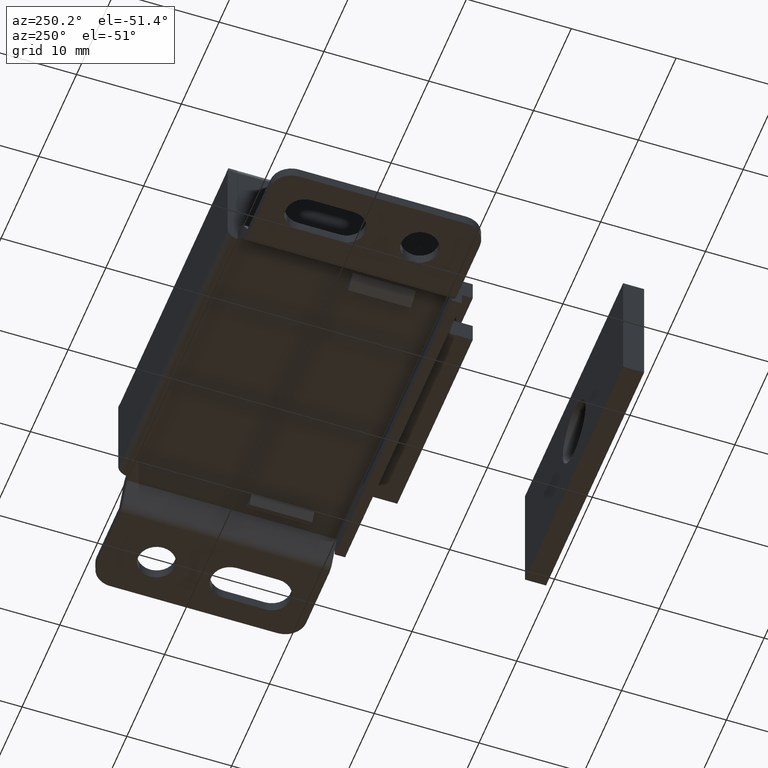
[diagram: clean part render]
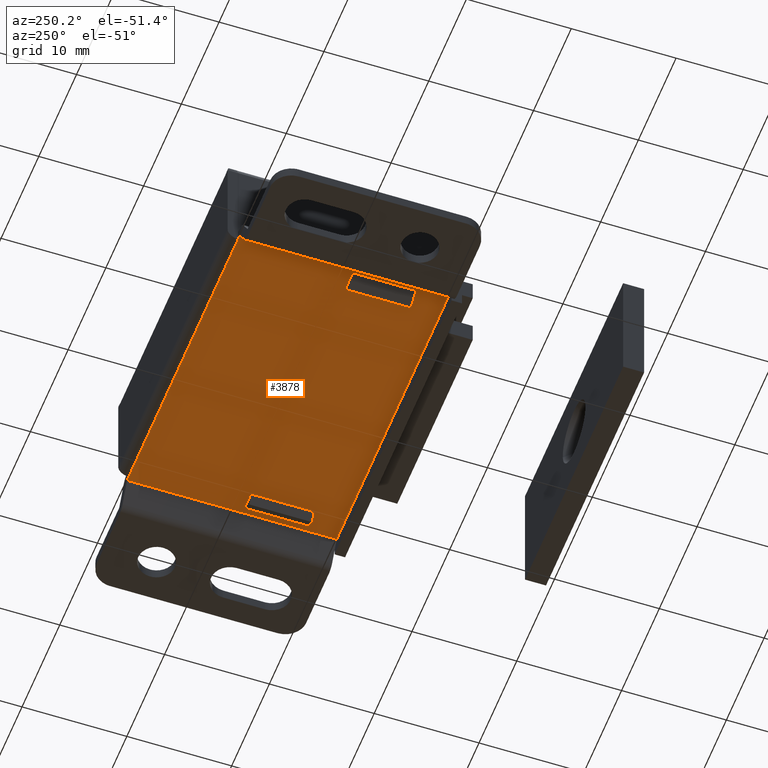
[diagram: same view with one face highlighted and labeled with its STEP entity id]
A machine part, auxiliary view. The second image highlights one B-rep face of the part: STEP entity #3878.
In plain terms, the highlighted face is a freeform B-spline surface patch.
Its self-contained STEP definition (entity closure, byte-faithful):
#2089=CARTESIAN_POINT('',(-14.500000000000000,-1.0,2.499999999999945));
#2090=VERTEX_POINT('',#2089);
#2547=CARTESIAN_POINT('',(14.500000000000000,-1.0,2.499999999999830));
#2548=VERTEX_POINT('',#2547);
#2564=CARTESIAN_POINT('',(-14.500000000000000,-1.0,2.499999999999945));
#2565=CARTESIAN_POINT('',(14.500000000000000,-1.0,2.499999999999830));
#2566=QUASI_UNIFORM_CURVE('',1,(#2564,#2565),.UNSPECIFIED.,.F.,.U.);
#2567=EDGE_CURVE('',#2090,#2548,#2566,.T.);
#3452=CARTESIAN_POINT('',(14.933800895014960,-21.0,2.499999999999945));
#3453=VERTEX_POINT('',#3452);
#3454=CARTESIAN_POINT('',(-14.933819033674780,-21.0,2.499999999999945));
#3455=VERTEX_POINT('',#3454);
#3456=CARTESIAN_POINT('',(14.933800895014960,-21.0,2.499999999999945));
#3457=CARTESIAN_POINT('',(-14.933819033674780,-21.0,2.499999999999945));
#3458=QUASI_UNIFORM_CURVE('',1,(#3456,#3457),.UNSPECIFIED.,.F.,.U.);
#3459=EDGE_CURVE('',#3453,#3455,#3458,.T.);
#3482=CARTESIAN_POINT('',(-12.761084341811539,-17.999995999999999,2.499999999999945));
#3483=VERTEX_POINT('',#3482);
#3484=CARTESIAN_POINT('',(-12.761084341811539,-11.999995999999999,2.499999999999945));
#3485=VERTEX_POINT('',#3484);
#3486=CARTESIAN_POINT('',(-12.761084341811539,-17.999995999999999,2.499999999999945));
#3487=CARTESIAN_POINT('',(-12.761084341811539,-11.999995999999999,2.499999999999945));
#3488=QUASI_UNIFORM_CURVE('',1,(#3486,#3487),.UNSPECIFIED.,.F.,.U.);
#3489=EDGE_CURVE('',#3483,#3485,#3488,.T.);
#3510=CARTESIAN_POINT('',(-14.354530770844359,-11.999995999999999,2.499999999999945));
#3511=VERTEX_POINT('',#3510);
#3512=CARTESIAN_POINT('',(-12.761084341811539,-11.999995999999999,2.499999999999945));
#3513=CARTESIAN_POINT('',(-14.354530770844359,-11.999995999999999,2.499999999999945));
#3514=QUASI_UNIFORM_CURVE('',1,(#3512,#3513),.UNSPECIFIED.,.F.,.U.);
#3515=EDGE_CURVE('',#3485,#3511,#3514,.T.);
#3542=CARTESIAN_POINT('',(-14.354530770844359,-17.999996000000149,2.499999999999945));
#3543=VERTEX_POINT('',#3542);
#3544=CARTESIAN_POINT('',(-12.761084341811539,-17.999995999999999,2.499999999999945));
#3545=CARTESIAN_POINT('',(-14.354530770844359,-17.999996000000149,2.499999999999945));
#3546=QUASI_UNIFORM_CURVE('',1,(#3544,#3545),.UNSPECIFIED.,.F.,.U.);
#3547=EDGE_CURVE('',#3483,#3543,#3546,.T.);
#3581=CARTESIAN_POINT('',(-14.354530770844359,-11.999995999999999,2.499999999999945));
#3582=CARTESIAN_POINT('',(-14.354530770844359,-17.999996000000149,2.499999999999945));
#3583=QUASI_UNIFORM_CURVE('',1,(#3581,#3582),.UNSPECIFIED.,.F.,.U.);
#3584=EDGE_CURVE('',#3511,#3543,#3583,.T.);
#3597=CARTESIAN_POINT('',(12.761084341811539,-11.999995999999999,2.499999999999945));
#3598=VERTEX_POINT('',#3597);
#3599=CARTESIAN_POINT('',(12.761084341811539,-17.999995999999999,2.499999999999945));
#3600=VERTEX_POINT('',#3599);
#3601=CARTESIAN_POINT('',(12.761084341811539,-11.999995999999999,2.499999999999945));
#3602=CARTESIAN_POINT('',(12.761084341811539,-17.999995999999999,2.499999999999945));
#3603=QUASI_UNIFORM_CURVE('',1,(#3601,#3602),.UNSPECIFIED.,.F.,.U.);
#3604=EDGE_CURVE('',#3598,#3600,#3603,.T.);
#3626=CARTESIAN_POINT('',(14.354530770844359,-11.999996000000120,2.499999999999945));
#3627=VERTEX_POINT('',#3626);
#3628=CARTESIAN_POINT('',(12.761084341811539,-11.999995999999999,2.499999999999945));
#3629=CARTESIAN_POINT('',(14.354530770844359,-11.999996000000120,2.499999999999945));
#3630=QUASI_UNIFORM_CURVE('',1,(#3628,#3629),.UNSPECIFIED.,.F.,.U.);
#3631=EDGE_CURVE('',#3598,#3627,#3630,.T.);
#3656=CARTESIAN_POINT('',(14.354530770844359,-17.999995999999999,2.499999999999945));
#3657=VERTEX_POINT('',#3656);
#3658=CARTESIAN_POINT('',(12.761084341811539,-17.999995999999999,2.499999999999945));
#3659=CARTESIAN_POINT('',(14.354530770844359,-17.999995999999999,2.499999999999945));
#3660=QUASI_UNIFORM_CURVE('',1,(#3658,#3659),.UNSPECIFIED.,.F.,.U.);
#3661=EDGE_CURVE('',#3600,#3657,#3660,.T.);
#3696=CARTESIAN_POINT('',(14.354530770844359,-17.999995999999999,2.499999999999945));
#3697=CARTESIAN_POINT('',(14.354530770844359,-11.999996000000120,2.499999999999945));
#3698=QUASI_UNIFORM_CURVE('',1,(#3696,#3697),.UNSPECIFIED.,.F.,.U.);
#3699=EDGE_CURVE('',#3657,#3627,#3698,.T.);
#3714=CARTESIAN_POINT('',(-14.933820000000001,-1.0,2.499999999999945));
#3715=VERTEX_POINT('',#3714);
#3716=CARTESIAN_POINT('',(-14.500000000000000,-1.0,2.499999999999945));
#3717=CARTESIAN_POINT('',(-14.933820000000001,-1.0,2.499999999999945));
#3718=QUASI_UNIFORM_CURVE('',1,(#3716,#3717),.UNSPECIFIED.,.F.,.U.);
#3719=EDGE_CURVE('',#2090,#3715,#3718,.T.);
#3832=CARTESIAN_POINT('',(-14.933819033674780,-21.0,2.499999999999945));
#3833=CARTESIAN_POINT('',(-14.933820000000001,-1.0,2.499999999999945));
#3834=QUASI_UNIFORM_CURVE('',1,(#3832,#3833),.UNSPECIFIED.,.F.,.U.);
#3835=EDGE_CURVE('',#3455,#3715,#3834,.T.);
#3843=CARTESIAN_POINT('',(16.425688500831711,-21.998999961236120,2.499999999999945));
#3844=CARTESIAN_POINT('',(-16.425708406928770,-21.998999961236120,2.499999999999945));
#3845=CARTESIAN_POINT('',(16.425688500831711,-0.000999502322078,2.499999999999945));
#3846=CARTESIAN_POINT('',(-16.425708406928770,-0.000999502322078,2.499999999999945));
#3847=B_SPLINE_SURFACE_WITH_KNOTS('',1,1,((#3843,#3845),(#3844,#3846)),.UNSPECIFIED.,.F.,.F.,.U.,(2,2),(2,2),(0.0,32.851396907760488),(0.0,21.998000458914049),.UNSPECIFIED.);
#3848=ORIENTED_EDGE('',*,*,#3719,.F.);
#3849=ORIENTED_EDGE('',*,*,#2567,.T.);
#3850=CARTESIAN_POINT('',(14.933800895014960,-1.0,2.499999999999940));
#3851=VERTEX_POINT('',#3850);
#3852=CARTESIAN_POINT('',(14.933800895014960,-1.0,2.499999999999940));
#3853=CARTESIAN_POINT('',(14.500000000000000,-1.0,2.499999999999830));
#3854=QUASI_UNIFORM_CURVE('',1,(#3852,#3853),.UNSPECIFIED.,.F.,.U.);
#3855=EDGE_CURVE('',#3851,#2548,#3854,.T.);
#3856=ORIENTED_EDGE('',*,*,#3855,.F.);
#3857=CARTESIAN_POINT('',(14.933800895014960,-21.0,2.499999999999945));
#3858=CARTESIAN_POINT('',(14.933800895014960,-1.0,2.499999999999940));
#3859=QUASI_UNIFORM_CURVE('',1,(#3857,#3858),.UNSPECIFIED.,.F.,.U.);
#3860=EDGE_CURVE('',#3453,#3851,#3859,.T.);
#3861=ORIENTED_EDGE('',*,*,#3860,.F.);
#3862=ORIENTED_EDGE('',*,*,#3459,.T.);
#3863=ORIENTED_EDGE('',*,*,#3835,.T.);
#3864=EDGE_LOOP('',(#3848,#3849,#3856,#3861,#3862,#3863));
#3865=FACE_OUTER_BOUND('',#3864,.T.);
#3866=ORIENTED_EDGE('',*,*,#3631,.F.);
#3867=ORIENTED_EDGE('',*,*,#3604,.T.);
#3868=ORIENTED_EDGE('',*,*,#3661,.T.);
#3869=ORIENTED_EDGE('',*,*,#3699,.T.);
#3870=EDGE_LOOP('',(#3866,#3867,#3868,#3869));
#3871=FACE_BOUND('',#3870,.T.);
#3872=ORIENTED_EDGE('',*,*,#3547,.F.);
#3873=ORIENTED_EDGE('',*,*,#3489,.T.);
#3874=ORIENTED_EDGE('',*,*,#3515,.T.);
#3875=ORIENTED_EDGE('',*,*,#3584,.T.);
#3876=EDGE_LOOP('',(#3872,#3873,#3874,#3875));
#3877=FACE_BOUND('',#3876,.T.);
#3878=ADVANCED_FACE('',(#3865,#3871,#3877),#3847,.T.);